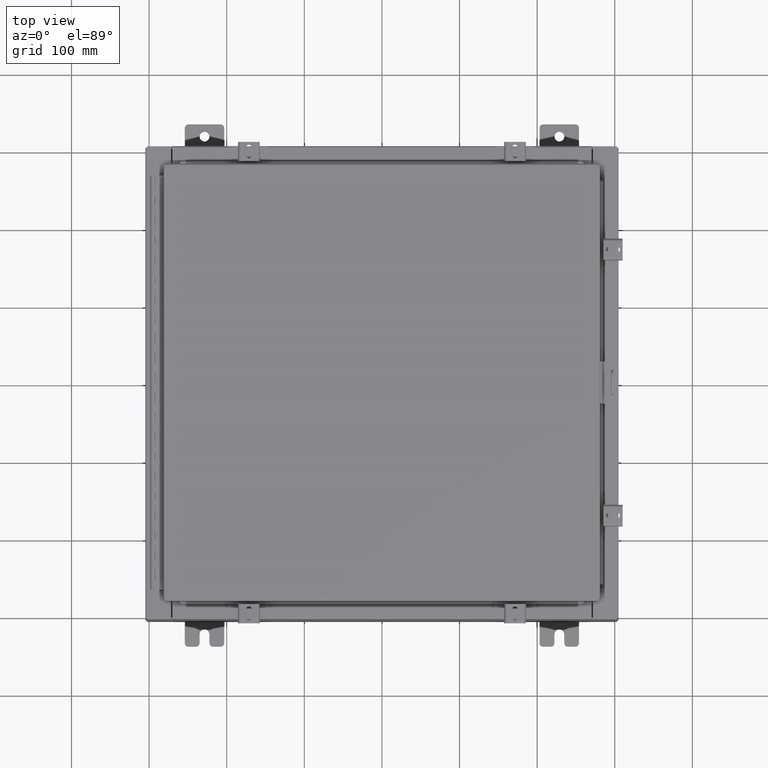
[diagram: clean part render]
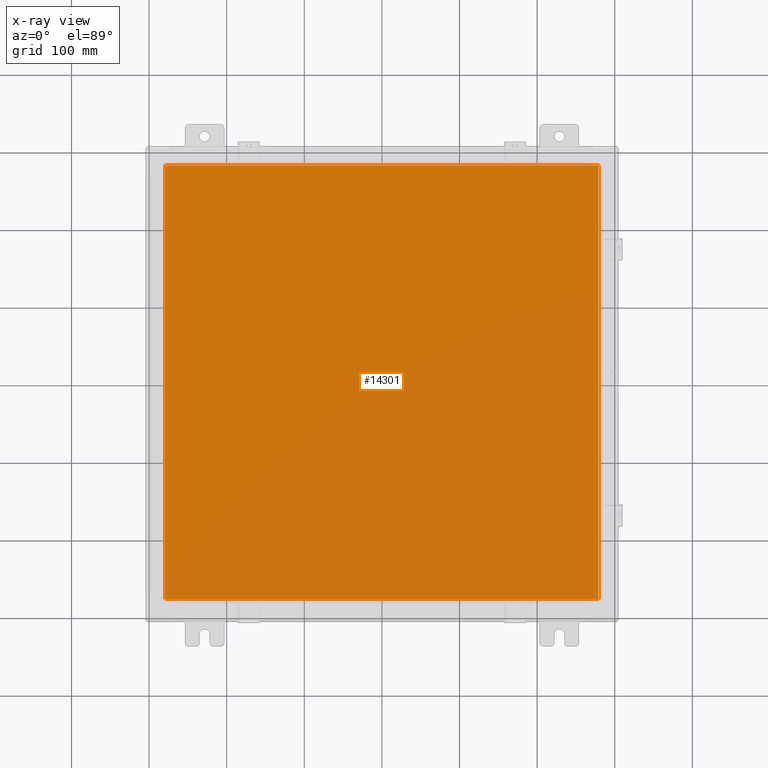
[diagram: x-ray — body ghosted, one internal face saturated and labeled with its STEP entity id]
A machine part, top view, then the same camera in x-ray: the body is ghosted and one INTERNAL B-rep face — a face not visible from any outside direction — is saturated and labeled: STEP entity #14301.
In plain terms, the highlighted planar face has unit normal (0, 0, -1).
Its self-contained STEP definition (entity closure, byte-faithful):
#305 = ORIENTED_EDGE ( 'NONE', *, *, #9303, .F. ) ;
#735 = VECTOR ( 'NONE', #9335, 39.37007874015748100 ) ;
#2457 = CARTESIAN_POINT ( 'NONE',  ( -10.99030000000000100, 11.00629999999999600, -0.07470000000000015500 ) ) ;
#3465 = CARTESIAN_POINT ( 'NONE',  ( -10.99030000000000000, -11.00630000000000100, -0.07469999999999907300 ) ) ;
#4242 = CARTESIAN_POINT ( 'NONE',  ( 10.99029999999999600, 11.00629999999999600, -0.07470000000000015500 ) ) ;
#4874 = EDGE_CURVE ( 'NONE', #20375, #26766, #27826, .T. ) ;
#5936 = EDGE_CURVE ( 'NONE', #7780, #20375, #7105, .T. ) ;
#6300 = VECTOR ( 'NONE', #20067, 39.37007874015748100 ) ;
#7105 = LINE ( 'NONE', #17501, #6300 ) ;
#7535 = PLANE ( 'NONE',  #30464 ) ;
#7780 = VERTEX_POINT ( 'NONE', #29541 ) ;
#9303 = EDGE_CURVE ( 'NONE', #26766, #9688, #30911, .T. ) ;
#9335 = DIRECTION ( 'NONE',  ( -1.000000000000000000, -0.0000000000000000000, -0.0000000000000000000 ) ) ;
#9688 = VERTEX_POINT ( 'NONE', #10675 ) ;
#9905 = EDGE_LOOP ( 'NONE', ( #26142, #14725, #305, #26284 ) ) ;
#10087 = DIRECTION ( 'NONE',  ( -1.000000000000000000, 0.0000000000000000000, -0.0000000000000000000 ) ) ;
#10675 = CARTESIAN_POINT ( 'NONE',  ( -10.99030000000000000, -11.00630000000000100, -0.07470000000000015500 ) ) ;
#12320 = LINE ( 'NONE', #3465, #13111 ) ;
#13111 = VECTOR ( 'NONE', #21289, 39.37007874015748100 ) ;
#14301 = ADVANCED_FACE ( 'NONE', ( #29452 ), #7535, .T. ) ;
#14725 = ORIENTED_EDGE ( 'NONE', *, *, #15168, .F. ) ;
#15111 = CARTESIAN_POINT ( 'NONE',  ( 0.0000000000000000000, 0.0000000000000000000, -0.07470000000000015500 ) ) ;
#15168 = EDGE_CURVE ( 'NONE', #9688, #7780, #12320, .T. ) ;
#17141 = CARTESIAN_POINT ( 'NONE',  ( -10.99030000000000500, 11.00629999999999600, -0.07470000000000125200 ) ) ;
#17501 = CARTESIAN_POINT ( 'NONE',  ( 10.99029999999999600, -11.00630000000000100, -0.07470000000000015500 ) ) ;
#20067 = DIRECTION ( 'NONE',  ( 0.0000000000000000000, 1.000000000000000000, 0.0000000000000000000 ) ) ;
#20375 = VERTEX_POINT ( 'NONE', #4242 ) ;
#21289 = DIRECTION ( 'NONE',  ( 1.000000000000000000, -0.0000000000000000000, -0.0000000000000000000 ) ) ;
#22128 = DIRECTION ( 'NONE',  ( 0.0000000000000000000, -1.000000000000000000, 0.0000000000000000000 ) ) ;
#25305 = DIRECTION ( 'NONE',  ( 0.0000000000000000000, 0.0000000000000000000, -1.000000000000000000 ) ) ;
#26142 = ORIENTED_EDGE ( 'NONE', *, *, #5936, .F. ) ;
#26284 = ORIENTED_EDGE ( 'NONE', *, *, #4874, .F. ) ;
#26766 = VERTEX_POINT ( 'NONE', #2457 ) ;
#27030 = CARTESIAN_POINT ( 'NONE',  ( 10.99029999999999800, 11.00629999999999600, -0.07470000000000015500 ) ) ;
#27826 = LINE ( 'NONE', #27030, #735 ) ;
#29452 = FACE_OUTER_BOUND ( 'NONE', #9905, .T. ) ;
#29541 = CARTESIAN_POINT ( 'NONE',  ( 10.99029999999999600, -11.00630000000000100, -0.07470000000000015500 ) ) ;
#30108 = VECTOR ( 'NONE', #22128, 39.37007874015748100 ) ;
#30464 = AXIS2_PLACEMENT_3D ( 'NONE', #15111, #25305, #10087 ) ;
#30911 = LINE ( 'NONE', #17141, #30108 ) ;